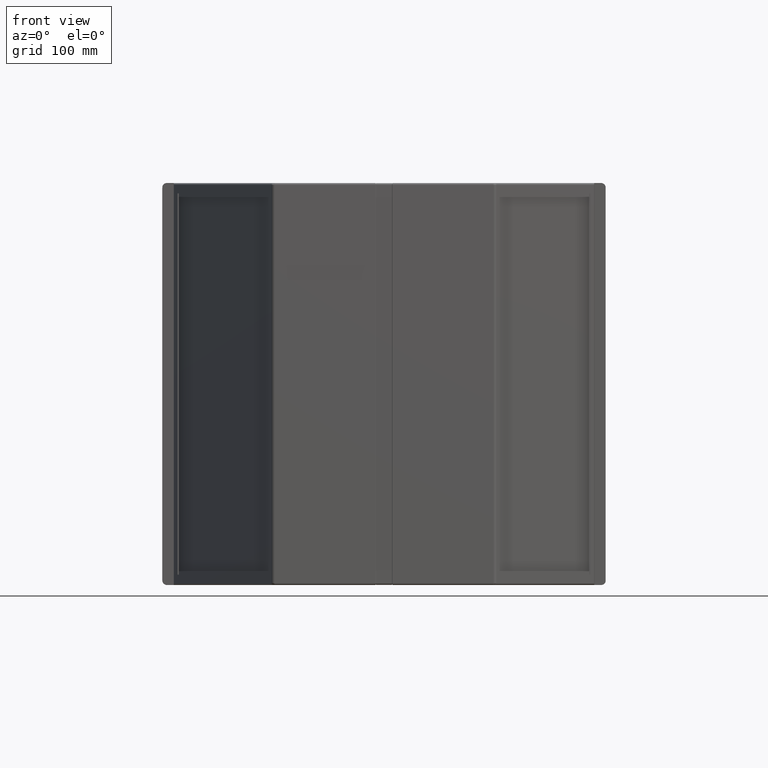
[diagram: clean part render]
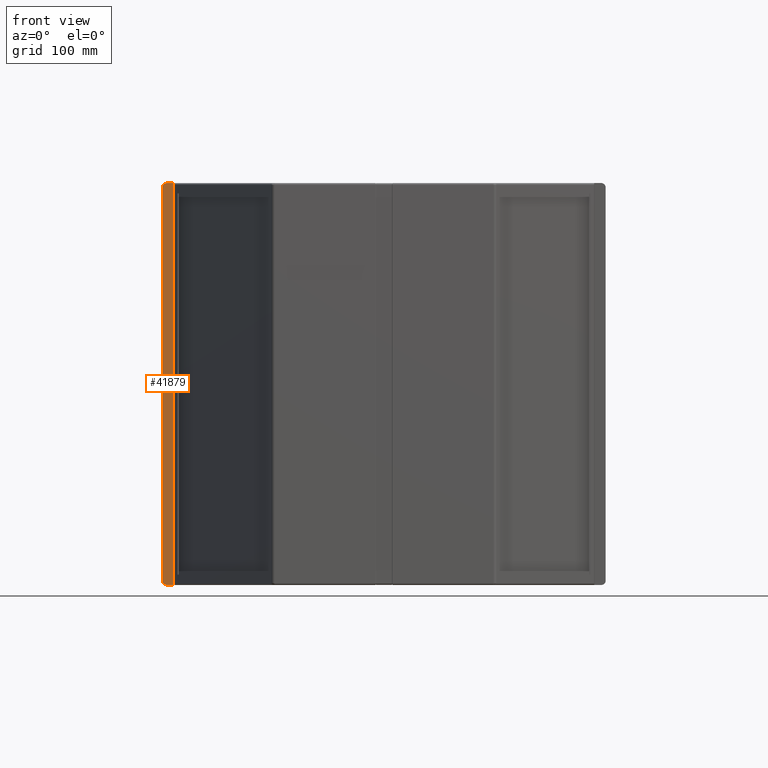
[diagram: same view with one face highlighted and labeled with its STEP entity id]
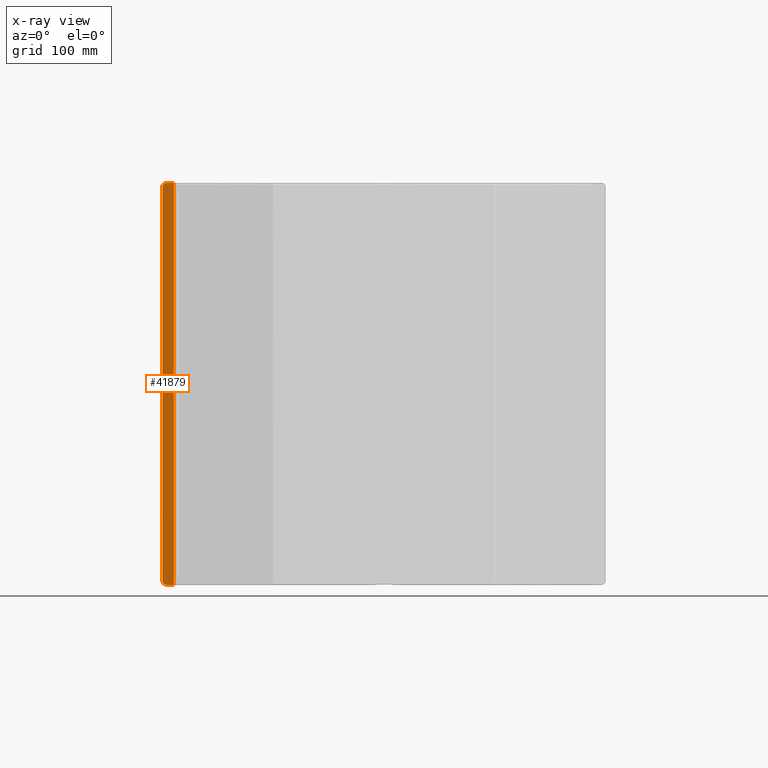
[diagram: x-ray of the same camera — body ghosted, the highlighted face saturated]
A machine part, front view. The second image highlights one B-rep face of the part: STEP entity #41879.
The next image is the same camera in x-ray: the body ghosted, the highlighted face saturated — about 0% of this face is hidden behind the body in this view.
In plain terms, the highlighted planar face has unit normal (-0.025, -0.9997, 0).
Its self-contained STEP definition (entity closure, byte-faithful):
#522=ELLIPSE('',#44337,4.00124980474851,4.);
#523=ELLIPSE('',#44340,4.00124980474851,4.);
#2006=PLANE('',#44339);
#3360=FACE_OUTER_BOUND('',#5633,.T.);
#5633=EDGE_LOOP('',(#28616,#28617,#28618,#28619,#28620,#28621));
#8674=LINE('',#59406,#12842);
#8677=LINE('',#59412,#12845);
#8678=LINE('',#59414,#12846);
#8679=LINE('',#59416,#12847);
#12842=VECTOR('',#48705,10.);
#12845=VECTOR('',#48710,10.);
#12846=VECTOR('',#48711,10.);
#12847=VECTOR('',#48712,10.);
#17786=VERTEX_POINT('',#59399);
#17787=VERTEX_POINT('',#59401);
#17788=VERTEX_POINT('',#59405);
#17790=VERTEX_POINT('',#59411);
#17791=VERTEX_POINT('',#59413);
#17792=VERTEX_POINT('',#59415);
#22026=EDGE_CURVE('',#17786,#17787,#522,.T.);
#22028=EDGE_CURVE('',#17788,#17787,#8674,.T.);
#22031=EDGE_CURVE('',#17790,#17786,#8677,.T.);
#22032=EDGE_CURVE('',#17791,#17790,#8678,.T.);
#22033=EDGE_CURVE('',#17792,#17791,#8679,.T.);
#22034=EDGE_CURVE('',#17788,#17792,#523,.T.);
#28616=ORIENTED_EDGE('',*,*,#22026,.F.);
#28617=ORIENTED_EDGE('',*,*,#22031,.F.);
#28618=ORIENTED_EDGE('',*,*,#22032,.F.);
#28619=ORIENTED_EDGE('',*,*,#22033,.F.);
#28620=ORIENTED_EDGE('',*,*,#22034,.F.);
#28621=ORIENTED_EDGE('',*,*,#22028,.T.);
#41879=ADVANCED_FACE('',(#3360),#2006,.T.);
#44337=AXIS2_PLACEMENT_3D('',#59402,#48700,#48701);
#44339=AXIS2_PLACEMENT_3D('',#59410,#48708,#48709);
#44340=AXIS2_PLACEMENT_3D('',#59417,#48713,#48714);
#48700=DIRECTION('center_axis',(0.0249921911602014,0.999687646408123,0.));
#48701=DIRECTION('ref_axis',(-0.999687646408123,0.0249921911602014,0.));
#48705=DIRECTION('',(0.,0.,-1.));
#48708=DIRECTION('center_axis',(-0.0249921911602014,-0.999687646408123,
0.));
#48709=DIRECTION('ref_axis',(0.,0.,1.));
#48710=DIRECTION('',(-0.999687646408123,0.0249921911602014,0.));
#48711=DIRECTION('',(0.,0.,-1.));
#48712=DIRECTION('',(0.999687646408123,-0.0249921911602014,3.06066069080192E-18));
#48713=DIRECTION('center_axis',(0.0249921911602014,0.999687646408123,0.));
#48714=DIRECTION('ref_axis',(-0.999687646408123,0.0249921911602014,-8.87900993980504E-15));
#59399=CARTESIAN_POINT('',(-188.999999929012,-0.999999999999968,0.));
#59401=CARTESIAN_POINT('',(-192.999999929012,-0.899999999999975,3.99999999999999));
#59402=CARTESIAN_POINT('Origin',(-188.999999929012,-0.999999999999961,3.99999999999999));
#59405=CARTESIAN_POINT('',(-192.999999929012,-0.899999999999975,346.));
#59406=CARTESIAN_POINT('',(-192.999999929012,-0.899999999999975,175.));
#59410=CARTESIAN_POINT('Origin',(-192.999999929012,-0.899999999999975,175.));
#59411=CARTESIAN_POINT('',(-182.999999929012,-1.14999999999996,0.));
#59412=CARTESIAN_POINT('',(-190.512804426201,-0.962179887570239,0.));
#59413=CARTESIAN_POINT('',(-182.999999929012,-1.14999999999996,350.));
#59414=CARTESIAN_POINT('',(-182.999999929012,-1.14999999999996,261.500000812948));
#59415=CARTESIAN_POINT('',(-188.999999929012,-0.999999999999968,350.));
#59416=CARTESIAN_POINT('',(-190.512804426201,-0.962179887570239,350.));
#59417=CARTESIAN_POINT('Origin',(-188.999999929012,-0.999999999999961,346.));